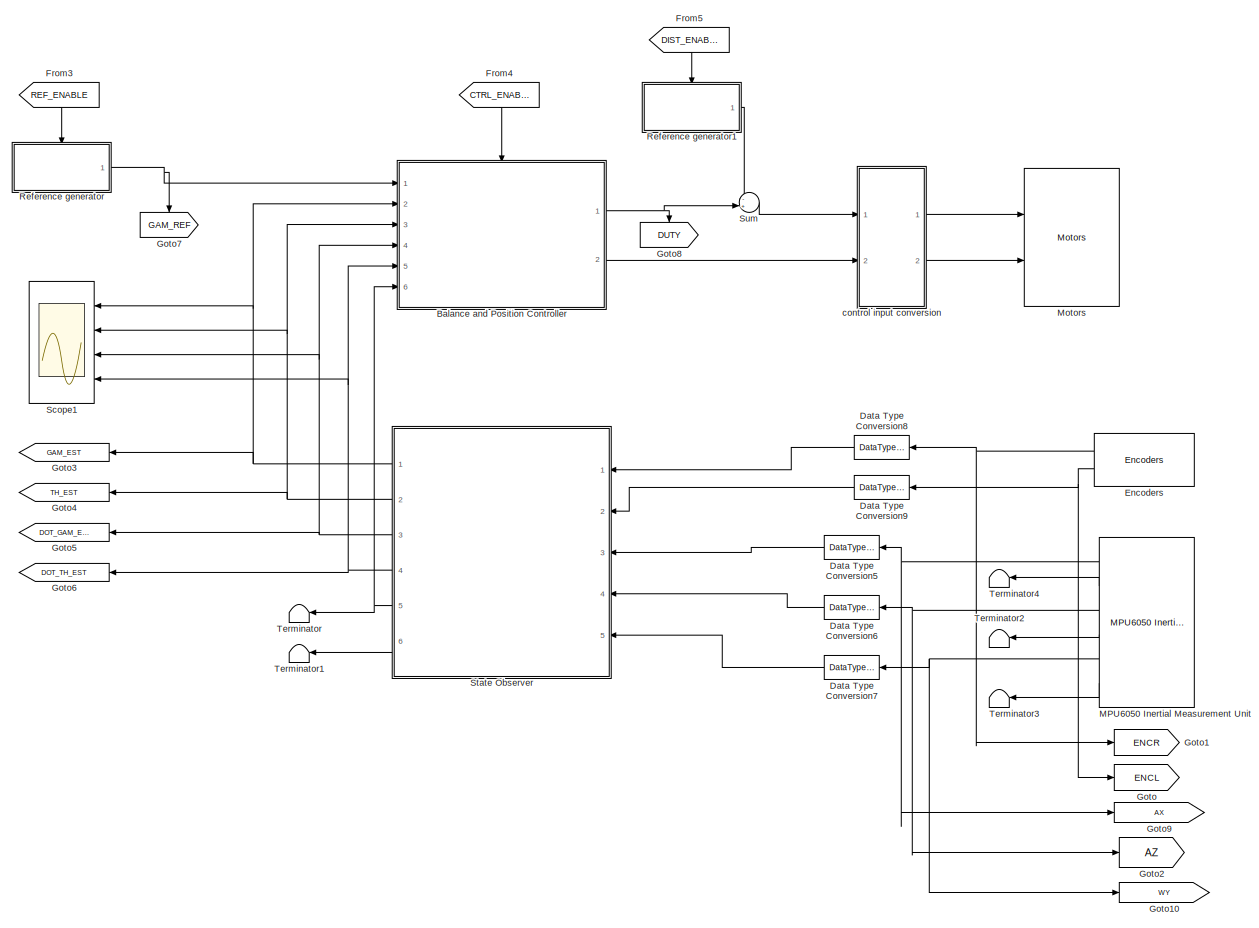
[diagram: root canvas - part 1/3, top center region]
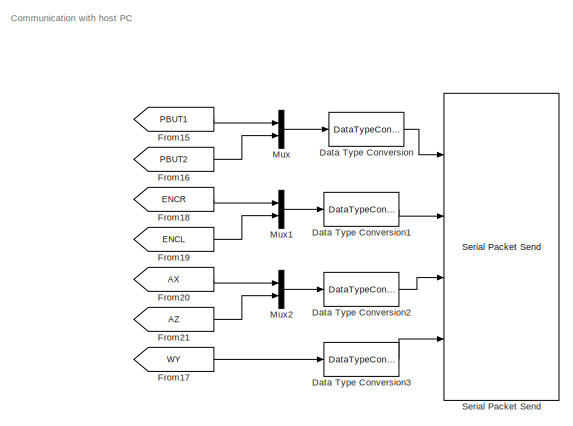
[diagram: root canvas - part 2/3, middle right region]
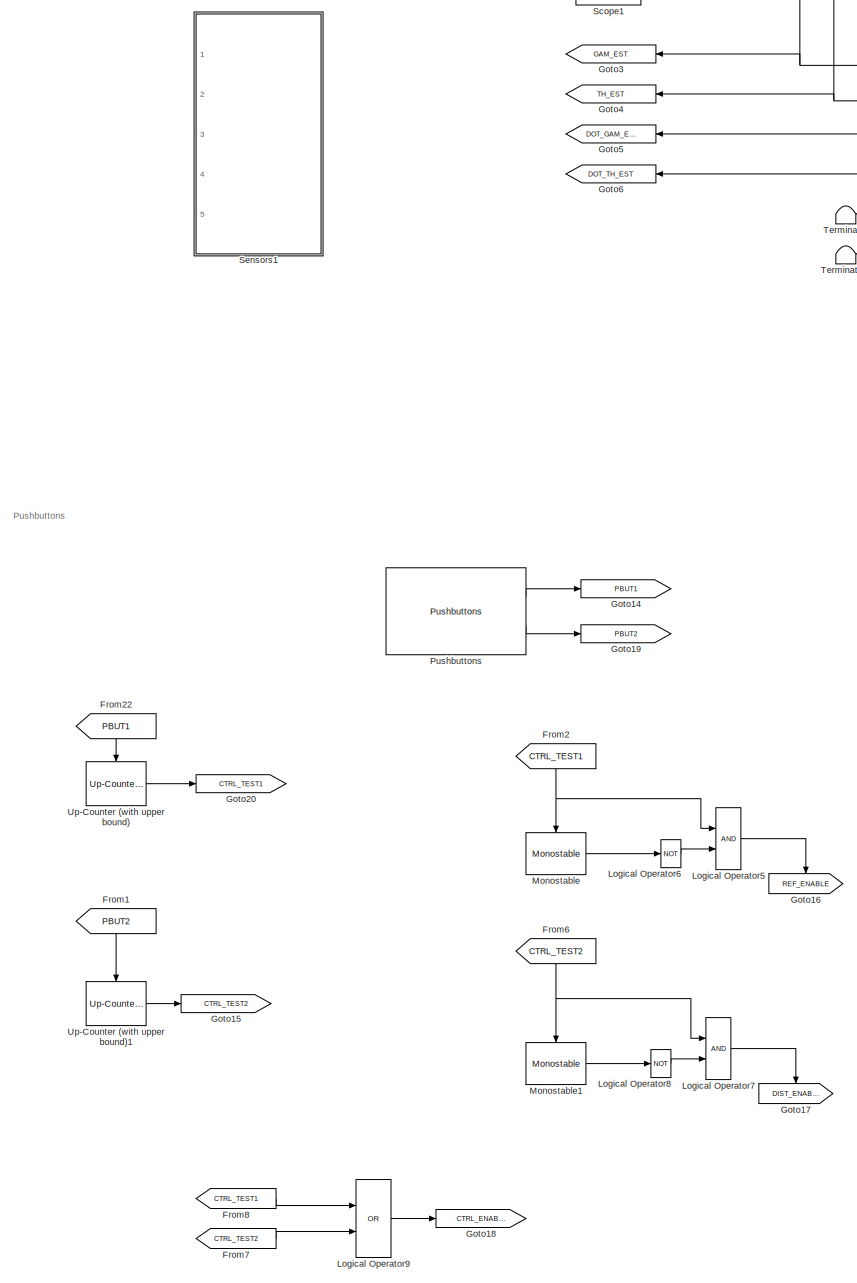
[diagram: root canvas - part 3/3, left side, full height]
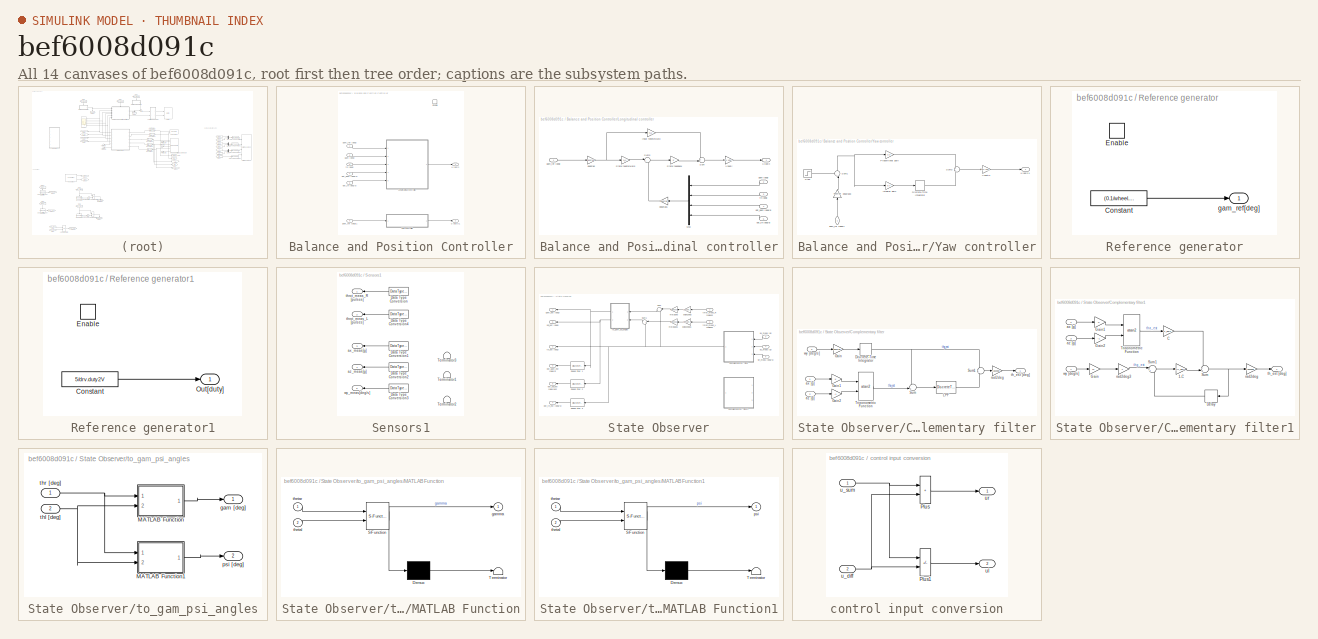
[diagram: thumbnail index - all 14 canvases of the model, root first then tree order]
MODEL slx_bef6008d091c
KIND model
CONFIG AbsTol = auto
CONFIG EnableMultiTasking = on
CONFIG FixedStep = auto
CONFIG MaxStep = auto
CONFIG MinStep = auto
CONFIG RelTol = 1e-3
CONFIG SampleTimeConstraint = Unconstrained
CONFIG SolverName = FixedStepDiscrete
CONFIG StartTime = 0.0
CONFIG StopTime = 10.0
BLOCK [SubSystem] Balance and Position Controller
  Ports = [6, 2, 1]
  RequestExecContextInheritance = off
BLOCK [EnablePort] Balance and Position Controller/Enable
  Ports = []
  StatesWhenEnabling = reset
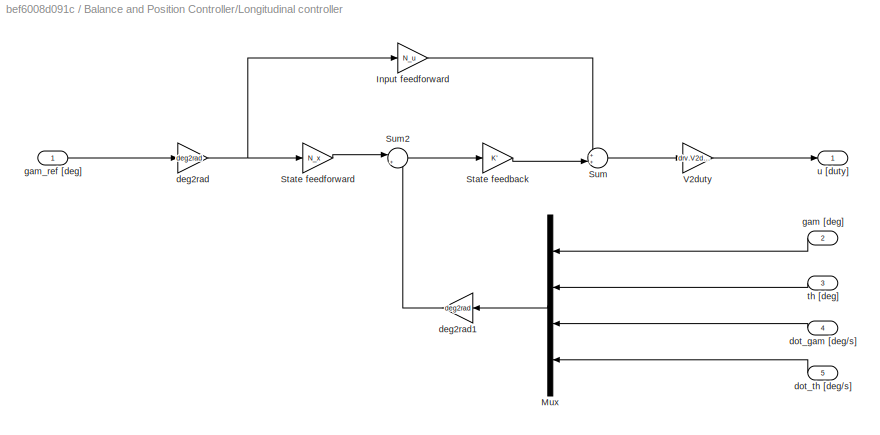
BLOCK [SubSystem] Balance and Position Controller/Longitudinal controller
  Ports = [5, 1]
  RequestExecContextInheritance = off
BLOCK [Gain] Balance and Position Controller/Longitudinal controller/Input feedforward
  Gain = N_u
BLOCK [Mux] Balance and Position Controller/Longitudinal controller/Mux
  DisplayOption = bar
  Ports = [4, 1]
BLOCK [Gain] Balance and Position Controller/Longitudinal controller/State feedback
  Gain = K'
  Multiplication = Matrix(u*K)
BLOCK [Gain] Balance and Position Controller/Longitudinal controller/State feedforward	
  Gain = N_x
  Multiplication = Matrix(u*K)
BLOCK [Sum] Balance and Position Controller/Longitudinal controller/Sum
  Inputs = ++|
  Ports = [2, 1]
BLOCK [Sum] Balance and Position Controller/Longitudinal controller/Sum2
  Inputs = |+-
  Ports = [2, 1]
BLOCK [Gain] Balance and Position Controller/Longitudinal controller/V2duty
  Gain = drv.V2duty
BLOCK [Gain] Balance and Position Controller/Longitudinal controller/deg2rad
  Gain = deg2rad
BLOCK [Gain] Balance and Position Controller/Longitudinal controller/deg2rad1
  Gain = deg2rad
BLOCK [Inport] Balance and Position Controller/Longitudinal controller/dot_gam [deg//s]
  Port = 4
BLOCK [Inport] Balance and Position Controller/Longitudinal controller/dot_th [deg//s]
  Port = 5
BLOCK [Inport] Balance and Position Controller/Longitudinal controller/gam [deg]
  Port = 2
BLOCK [Inport] Balance and Position Controller/Longitudinal controller/gam_ref [deg]
BLOCK [Inport] Balance and Position Controller/Longitudinal controller/th [deg]
  Port = 3
BLOCK [Outport] Balance and Position Controller/Longitudinal controller/u [duty]
BLOCK [SubSystem] Balance and Position Controller/Yaw controller
  Ports = [1, 1]
  RequestExecContextInheritance = off
BLOCK [DiscreteIntegrator] Balance and Position Controller/Yaw controller/Discrete-Time Integrator
  ICPrevOutput = DiscIntNeverNeededParam
  ICPrevScaledInput = DiscIntNeverNeededParam
  InitialConditionSetting = Auto
  Ports = [1, 1]
  SampleTime = -1
BLOCK [Gain] Balance and Position Controller/Yaw controller/Integral gain
  Gain = 0.7
BLOCK [Gain] Balance and Position Controller/Yaw controller/Proportional gain
  Gain = 3.3
BLOCK [Step] Balance and Position Controller/Yaw controller/Step
  After = 0
  SampleTime = 0
  Time = 0
BLOCK [Sum] Balance and Position Controller/Yaw controller/Sum1
  Inputs = +-|
  NameLocation = right
  Ports = [2, 1]
BLOCK [Sum] Balance and Position Controller/Yaw controller/Sum3
  Inputs = +|+
  Ports = [2, 1]
BLOCK [Gain] Balance and Position Controller/Yaw controller/V2duty1
  Gain = drv.V2duty
BLOCK [Gain] Balance and Position Controller/Yaw controller/deg2rad3
  Gain = deg2rad
  Multiplication = Matrix(u*K)
  NameLocation = right
BLOCK [Inport] Balance and Position Controller/Yaw controller/gam_ref [deg]1
  NameLocation = right
BLOCK [Outport] Balance and Position Controller/Yaw controller/u [duty]1
BLOCK [Inport] Balance and Position Controller/dot_gam [deg//s]
  Port = 4
BLOCK [Inport] Balance and Position Controller/dot_th [deg//s]
  Port = 5
BLOCK [Inport] Balance and Position Controller/gam [deg]
  Port = 2
BLOCK [Inport] Balance and Position Controller/gam_ref [deg]
BLOCK [Inport] Balance and Position Controller/gam_ref [deg]1
  Port = 6
BLOCK [Inport] Balance and Position Controller/th [deg]
  Port = 3
BLOCK [Outport] Balance and Position Controller/u [duty]
BLOCK [Outport] Balance and Position Controller/u [duty]1
  InitialOutput = [0]
  Port = 2
BLOCK [DataTypeConversion] Data Type Conversion
  OutDataTypeStr = uint8
  RndMeth = Floor
  SaturateOnIntegerOverflow = off
BLOCK [DataTypeConversion] Data Type Conversion1
  OutDataTypeStr = int32
  RndMeth = Floor
  SaturateOnIntegerOverflow = off
BLOCK [DataTypeConversion] Data Type Conversion2
  OutDataTypeStr = single
  RndMeth = Floor
  SaturateOnIntegerOverflow = off
BLOCK [DataTypeConversion] Data Type Conversion3
  OutDataTypeStr = single
  RndMeth = Floor
  SaturateOnIntegerOverflow = off
BLOCK [DataTypeConversion] Data Type Conversion5
  OutDataTypeStr = double
  RndMeth = Floor
  SaturateOnIntegerOverflow = off
BLOCK [DataTypeConversion] Data Type Conversion6
  OutDataTypeStr = double
  RndMeth = Floor
  SaturateOnIntegerOverflow = off
BLOCK [DataTypeConversion] Data Type Conversion7
  OutDataTypeStr = double
  RndMeth = Floor
  SaturateOnIntegerOverflow = off
BLOCK [DataTypeConversion] Data Type Conversion8
  OutDataTypeStr = double
  RndMeth = Floor
  SaturateOnIntegerOverflow = off
BLOCK [DataTypeConversion] Data Type Conversion9
  OutDataTypeStr = double
  RndMeth = Floor
  SaturateOnIntegerOverflow = off
BLOCK [Reference] Encoders  REF=BalRobTbx_baselib/Inputs/Encoders
  NameLocation = top
  Ports = [0, 2]
  SourceBlock = BalRobTbx_baselib/Inputs/Encoders
  SourceProductName = Balancing Robot Toolbox
  SourceType = Encoders
BLOCK [From] From1
  GotoTag = PBUT2
  NameLocation = right
BLOCK [From] From15
  GotoTag = PBUT1
BLOCK [From] From16
  GotoTag = PBUT2
BLOCK [From] From17
  GotoTag = WY
BLOCK [From] From18
  GotoTag = ENCR
BLOCK [From] From19
  GotoTag = ENCL
BLOCK [From] From2
  GotoTag = CTRL_TEST1
  NameLocation = right
BLOCK [From] From20
  GotoTag = AX
BLOCK [From] From21
  GotoTag = AZ
BLOCK [From] From22
  GotoTag = PBUT1
  NameLocation = right
BLOCK [From] From3
  GotoTag = REF_ENABLE
  NameLocation = right
BLOCK [From] From4
  GotoTag = CTRL_ENABLE
  NameLocation = right
BLOCK [From] From5
  GotoTag = DIST_ENABLE
  NameLocation = right
BLOCK [From] From6
  GotoTag = CTRL_TEST2
  NameLocation = right
BLOCK [From] From7
  GotoTag = CTRL_TEST2
  NameLocation = top
BLOCK [From] From8
  GotoTag = CTRL_TEST1
  NameLocation = top
BLOCK [Goto] Goto
  GotoTag = ENCL
BLOCK [Goto] Goto1
  GotoTag = ENCR
BLOCK [Goto] Goto10
  GotoTag = WY
BLOCK [Goto] Goto14
  GotoTag = PBUT1
BLOCK [Goto] Goto15
  GotoTag = CTRL_TEST2
BLOCK [Goto] Goto16
  GotoTag = REF_ENABLE
  NameLocation = left
BLOCK [Goto] Goto17
  GotoTag = DIST_ENABLE
  NameLocation = left
BLOCK [Goto] Goto18
  GotoTag = CTRL_ENABLE
BLOCK [Goto] Goto19
  GotoTag = PBUT2
BLOCK [Goto] Goto2
  GotoTag = AZ
BLOCK [Goto] Goto20
  GotoTag = CTRL_TEST1
BLOCK [Goto] Goto3
  GotoTag = GAM_EST
BLOCK [Goto] Goto4
  GotoTag = TH_EST
BLOCK [Goto] Goto5
  GotoTag = DOT_GAM_EST
BLOCK [Goto] Goto6
  GotoTag = DOT_TH_EST
BLOCK [Goto] Goto7
  GotoTag = GAM_REF
  NameLocation = left
BLOCK [Goto] Goto8
  GotoTag = DUTY
  NameLocation = left
BLOCK [Goto] Goto9
  GotoTag = AX
BLOCK [Logic] Logical Operator5
  AllPortsSameDT = off
  OutDataTypeStr = boolean
  Ports = [2, 1]
BLOCK [Logic] Logical Operator6
  AllPortsSameDT = off
  Inputs = 1
  Operator = NOT
  OutDataTypeStr = boolean
  Ports = [1, 1]
BLOCK [Logic] Logical Operator7
  AllPortsSameDT = off
  OutDataTypeStr = boolean
  Ports = [2, 1]
BLOCK [Logic] Logical Operator8
  AllPortsSameDT = off
  Inputs = 1
  Operator = NOT
  OutDataTypeStr = boolean
  Ports = [1, 1]
BLOCK [Logic] Logical Operator9
  AllPortsSameDT = off
  Operator = OR
  OutDataTypeStr = boolean
  Ports = [2, 1]
BLOCK [Reference] MPU6050 Inertial Measurement Unit  REF=BalRobTbx_baselib/Inputs/MPU6050
Inertial Measurement Unit
  NameLocation = top
  Ports = [0, 6]
  SourceBlock = BalRobTbx_baselib/Inputs/MPU6050\nInertial Measurement Unit
  SourceProductName = Balancing Robot Toolbox
  SourceType = MPU6050
BLOCK [Reference] Monostable  REF=BalRobTbx_baselib/Utilities/Monostable
  Ports = [0, 1, 1]
  SourceBlock = BalRobTbx_baselib/Utilities/Monostable
  SourceProductName = Balancing Robot Toolbox
BLOCK [Reference] Monostable1  REF=BalRobTbx_baselib/Utilities/Monostable
  Ports = [0, 1, 1]
  SourceBlock = BalRobTbx_baselib/Utilities/Monostable
  SourceProductName = Balancing Robot Toolbox
BLOCK [Reference] Motors  REF=BalRobTbx_baselib/Outputs/Motors
  Ports = [2]
  SourceBlock = BalRobTbx_baselib/Outputs/Motors
  SourceProductName = Balancing Robot Toolbox
  SourceType = Motors
BLOCK [Mux] Mux
  DisplayOption = bar
  Inputs = 2
  Ports = [2, 1]
BLOCK [Mux] Mux1
  DisplayOption = bar
  Inputs = 2
  Ports = [2, 1]
BLOCK [Mux] Mux2
  DisplayOption = bar
  Inputs = 2
  Ports = [2, 1]
BLOCK [Reference] Pushbuttons  REF=BalRobTbx_baselib/Inputs/Pushbuttons
  Ports = [0, 2]
  SourceBlock = BalRobTbx_baselib/Inputs/Pushbuttons
  SourceProductName = Balancing Robot Toolbox
  SourceType = Pushbuttons
BLOCK [SubSystem] Reference generator
  Ports = [0, 1, 1]
  RequestExecContextInheritance = off
BLOCK [Constant] Reference generator/Constant
  SampleTime = 0.01
  Value = (0.1/wheel.r)*rad2deg
BLOCK [EnablePort] Reference generator/Enable
  Ports = []
  StatesWhenEnabling = reset
BLOCK [Outport] Reference generator/gam_ref[deg]
BLOCK [SubSystem] Reference generator1
  Ports = [0, 1, 1]
  RequestExecContextInheritance = off
BLOCK [Constant] Reference generator1/Constant
  SampleTime = 0.01
  Value = 5/drv.duty2V
BLOCK [EnablePort] Reference generator1/Enable
  Ports = []
  StatesWhenEnabling = reset
BLOCK [Outport] Reference generator1/Out[duty]
  InitialOutput = [0]
BLOCK [Scope] Scope1
  Floating = off
  NumInputPorts = 4
  Ports = [4]
  ScopeSpecificationString = Simulink.scopes.TimeScopeBlockCfg('CurrentConfiguration', extmgr.ConfigurationSet(extmgr.Configuration('Core','General UI',true),extmgr.Configuration('Core','Source UI',true),extmgr.Configuration('Sources','WiredSimulink',true,'DataLogging',true,'DataLoggingSaveFormat','StructureWithTime'),extmgr.Configuration('Visuals','Time Domain',true,'SerializedDisplays',{struct('MinYLimReal','-1314.10845','M...<+3526ch>
BLOCK [SubSystem] Sensors1
  Commented = on
  Ports = [0, 5]
  RequestExecContextInheritance = off
BLOCK [DataTypeConversion] Sensors1/Data Type Conversion
  OutDataTypeStr = double
  RndMeth = Floor
  SaturateOnIntegerOverflow = off
BLOCK [DataTypeConversion] Sensors1/Data Type Conversion1
  OutDataTypeStr = double
  RndMeth = Floor
  SaturateOnIntegerOverflow = off
BLOCK [DataTypeConversion] Sensors1/Data Type Conversion2
  OutDataTypeStr = double
  RndMeth = Floor
  SaturateOnIntegerOverflow = off
BLOCK [DataTypeConversion] Sensors1/Data Type Conversion3
  OutDataTypeStr = double
  RndMeth = Floor
  SaturateOnIntegerOverflow = off
BLOCK [DataTypeConversion] Sensors1/Data Type Conversion4
  OutDataTypeStr = double
  RndMeth = Floor
  SaturateOnIntegerOverflow = off
BLOCK [Terminator] Sensors1/Terminator1
BLOCK [Terminator] Sensors1/Terminator2
BLOCK [Terminator] Sensors1/Terminator3
BLOCK [Outport] Sensors1/ax_meas[g]
  Port = 3
BLOCK [Outport] Sensors1/az_meas[g]
  Port = 4
BLOCK [Outport] Sensors1/throt_meas_L [pulses]
  Port = 2
BLOCK [Outport] Sensors1/throt_meas_R [pulses]
BLOCK [Outport] Sensors1/wy_meas[deg//s]
  Port = 5
BLOCK [Reference] Serial Packet Send  REF=BalRobTbx_baselib/Communication/Serial Packet Send
  Ports = [4]
  SourceBlock = BalRobTbx_baselib/Communication/Serial Packet Send
  SourceProductName = Balancing Robot Toolbox
  SourceType = Serial Packet Send
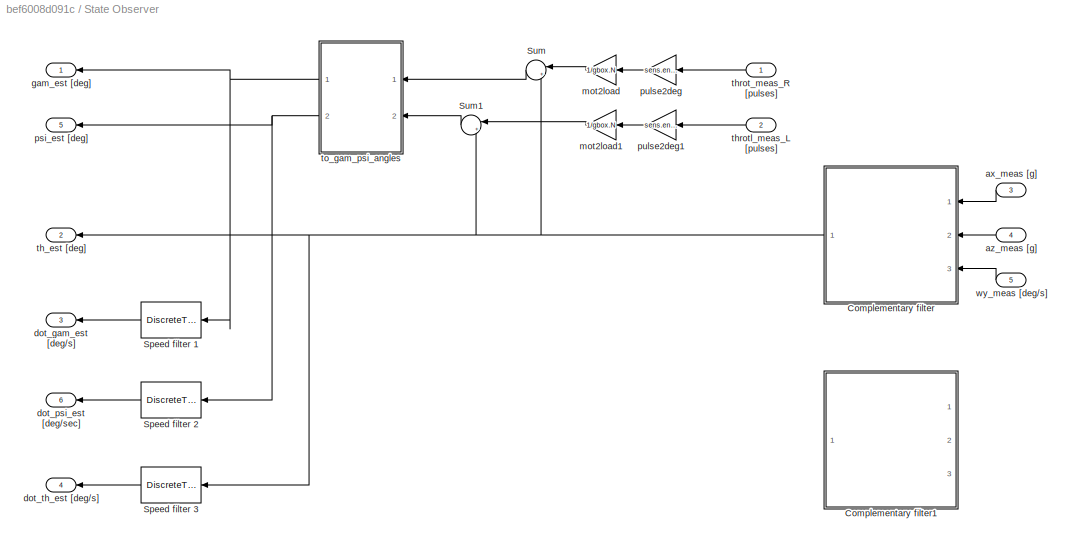
BLOCK [SubSystem] State Observer
  Ports = [5, 6]
  RequestExecContextInheritance = off
BLOCK [SubSystem] State Observer/Complementary filter
  Ports = [3, 1]
  RequestExecContextInheritance = off
BLOCK [DiscreteIntegrator] State Observer/Complementary filter/Discrete-Time Integrator
  ICPrevOutput = DiscIntNeverNeededParam
  ICPrevScaledInput = DiscIntNeverNeededParam
  InitialConditionSetting = Auto
  Ports = [1, 1]
  SampleTime = Ts
  gainval = 1
BLOCK [Gain] State Observer/Complementary filter/Gain
  Gain = deg2rad
BLOCK [Gain] State Observer/Complementary filter/Gain1
BLOCK [Gain] State Observer/Complementary filter/Gain2
  Gain = -1
BLOCK [DiscreteTransferFcn] State Observer/Complementary filter/LPF
  Denominator = [denLPFz]
  InputPortMap = u0
  Numerator = [numLPFz]
  Ports = [1, 1]
  SampleTime = Ts
BLOCK [Sum] State Observer/Complementary filter/Sum
  Inputs = -+|
  Ports = [2, 1]
BLOCK [Sum] State Observer/Complementary filter/Sum1
  Ports = [2, 1]
BLOCK [Trigonometry] State Observer/Complementary filter/Trigonometric Function
  Operator = atan2
  Ports = [2, 1]
BLOCK [Inport] State Observer/Complementary filter/ax [g] 
BLOCK [Inport] State Observer/Complementary filter/az [g] 
  Port = 2
BLOCK [Gain] State Observer/Complementary filter/rad2deg
  Gain = rad2deg
BLOCK [Outport] State Observer/Complementary filter/th_est [deg] 
BLOCK [Inport] State Observer/Complementary filter/wy [deg//s]
  Port = 3
BLOCK [SubSystem] State Observer/Complementary filter1
  Commented = on
  Ports = [3, 1]
  RequestExecContextInheritance = off
BLOCK [Gain] State Observer/Complementary filter1/1-C
  Gain = 1-C_gain
BLOCK [Gain] State Observer/Complementary filter1/C
  Gain = C_gain
BLOCK [Delay] State Observer/Complementary filter1/Delay
  DelayLength = 1
  InputPortMap = u0
  NameLocation = top
  Ports = [1, 1]
BLOCK [Gain] State Observer/Complementary filter1/Gain
  Gain = 11
BLOCK [Gain] State Observer/Complementary filter1/Gain1
BLOCK [Gain] State Observer/Complementary filter1/Gain2
  Gain = -1
BLOCK [Sum] State Observer/Complementary filter1/Sum
  Inputs = ++|
  Ports = [2, 1]
BLOCK [Sum] State Observer/Complementary filter1/Sum1
  Inputs = |++
  Ports = [2, 1]
BLOCK [Trigonometry] State Observer/Complementary filter1/Trigonometric Function
  Operator = atan2
  Ports = [2, 1]
BLOCK [Inport] State Observer/Complementary filter1/ax [g] 
  Port = 2
BLOCK [Inport] State Observer/Complementary filter1/az [g] 
  Port = 3
BLOCK [Gain] State Observer/Complementary filter1/rad2deg
  Gain = rad2deg
BLOCK [Gain] State Observer/Complementary filter1/rad2deg3
  Gain = T
BLOCK [Outport] State Observer/Complementary filter1/th_est [deg] 
BLOCK [Inport] State Observer/Complementary filter1/wy [deg//s]
BLOCK [DiscreteTransferFcn] State Observer/Speed filter 1
  Denominator = [denHw]
  InputPortMap = u0
  Numerator = [numHw]
  Ports = [1, 1]
  SampleTime = Ts
BLOCK [DiscreteTransferFcn] State Observer/Speed filter 2
  Denominator = [denHw]
  InputPortMap = u0
  Numerator = [numHw]
  Ports = [1, 1]
  SampleTime = Ts
BLOCK [DiscreteTransferFcn] State Observer/Speed filter 3
  Denominator = [denHw]
  InputPortMap = u0
  Numerator = [numHw]
  Ports = [1, 1]
  SampleTime = Ts
BLOCK [Sum] State Observer/Sum
  Inputs = |++
  NameLocation = top
  Ports = [2, 1]
BLOCK [Sum] State Observer/Sum1
  Inputs = |++
  NameLocation = top
  Ports = [2, 1]
BLOCK [Inport] State Observer/ax_meas [g] 
  Port = 3
BLOCK [Inport] State Observer/az_meas [g] 
  Port = 4
BLOCK [Outport] State Observer/dot_gam_est [deg//s]
  Port = 3
BLOCK [Outport] State Observer/dot_psi_est [deg//sec]
  Port = 6
BLOCK [Outport] State Observer/dot_th_est [deg//s]
  Port = 4
BLOCK [Outport] State Observer/gam_est [deg]
BLOCK [Gain] State Observer/mot2load
  Gain = 1/gbox.N
BLOCK [Gain] State Observer/mot2load1
  Gain = 1/gbox.N
BLOCK [Outport] State Observer/psi_est [deg]
  Port = 5
BLOCK [Gain] State Observer/pulse2deg
  Gain = sens.enc.pulse2deg
BLOCK [Gain] State Observer/pulse2deg1
  Gain = sens.enc.pulse2deg
BLOCK [Outport] State Observer/th_est [deg]
  Port = 2
BLOCK [Inport] State Observer/throt_meas_R [pulses] 
BLOCK [Inport] State Observer/throtl_meas_L [pulses]
  Port = 2
BLOCK [SubSystem] State Observer/to_gam_psi_angles
  Ports = [2, 2]
  RequestExecContextInheritance = off
BLOCK [SubSystem] State Observer/to_gam_psi_angles/MATLAB Function
  ErrorFcn = Stateflow.Translate.translate
  PermitHierarchicalResolution = ExplicitOnly
  Ports = [2, 1]
  RequestExecContextInheritance = off
  SFBlockType = MATLAB Function
  TreatAsAtomicUnit = on
BLOCK [Demux] State Observer/to_gam_psi_angles/MATLAB Function/ Demux 
  Outputs = 1
  Ports = [1, 1]
BLOCK [S-Function] State Observer/to_gam_psi_angles/MATLAB Function/ SFunction 
  EnableBusSupport = on
  FunctionName = sf_sfun
  PortCounts = [2 2]
  Ports = [2, 2]
  SFcnIsStateOwnerBlock = off
  SFunctionDeploymentMode = off
  Tag = Stateflow S-Function 2
BLOCK [Terminator] State Observer/to_gam_psi_angles/MATLAB Function/ Terminator 
BLOCK [Outport] State Observer/to_gam_psi_angles/MATLAB Function/gamma
BLOCK [Inport] State Observer/to_gam_psi_angles/MATLAB Function/thetal
  Port = 2
BLOCK [Inport] State Observer/to_gam_psi_angles/MATLAB Function/thetar
BLOCK [SubSystem] State Observer/to_gam_psi_angles/MATLAB Function1
  ErrorFcn = Stateflow.Translate.translate
  PermitHierarchicalResolution = ExplicitOnly
  Ports = [2, 1]
  RequestExecContextInheritance = off
  SFBlockType = MATLAB Function
  TreatAsAtomicUnit = on
BLOCK [Demux] State Observer/to_gam_psi_angles/MATLAB Function1/ Demux 
  Outputs = 1
  Ports = [1, 1]
BLOCK [S-Function] State Observer/to_gam_psi_angles/MATLAB Function1/ SFunction 
  EnableBusSupport = on
  FunctionName = sf_sfun
  PortCounts = [2 2]
  Ports = [2, 2]
  SFcnIsStateOwnerBlock = off
  SFunctionDeploymentMode = off
  Tag = Stateflow S-Function 1
BLOCK [Terminator] State Observer/to_gam_psi_angles/MATLAB Function1/ Terminator 
BLOCK [Outport] State Observer/to_gam_psi_angles/MATLAB Function1/psi
BLOCK [Inport] State Observer/to_gam_psi_angles/MATLAB Function1/thetal
  Port = 2
BLOCK [Inport] State Observer/to_gam_psi_angles/MATLAB Function1/thetar
BLOCK [Outport] State Observer/to_gam_psi_angles/gam [deg]
BLOCK [Outport] State Observer/to_gam_psi_angles/psi [deg]
  Port = 2
BLOCK [Inport] State Observer/to_gam_psi_angles/thl [deg]
  Port = 2
BLOCK [Inport] State Observer/to_gam_psi_angles/thr [deg]
BLOCK [Inport] State Observer/wy_meas [deg//s]
  Port = 5
BLOCK [Sum] Sum
  Inputs = -+|
  Ports = [2, 1]
BLOCK [Terminator] Terminator
BLOCK [Terminator] Terminator1
BLOCK [Terminator] Terminator2
BLOCK [Terminator] Terminator3
BLOCK [Terminator] Terminator4
BLOCK [Reference] Up-Counter (with upper bound)  REF=BalRobTbx_baselib/Utilities/Up-Counter
(with upper bound)
  Ports = [0, 1, 0, 1]
  SourceBlock = BalRobTbx_baselib/Utilities/Up-Counter\n(with upper bound)
  SourceProductName = Balancing Robot Toolbox
BLOCK [Reference] Up-Counter (with upper bound)1  REF=BalRobTbx_baselib/Utilities/Up-Counter
(with upper bound)
  Ports = [0, 1, 0, 1]
  SourceBlock = BalRobTbx_baselib/Utilities/Up-Counter\n(with upper bound)
  SourceProductName = Balancing Robot Toolbox
BLOCK [SubSystem] control input conversion
  Ports = [2, 2]
  RequestExecContextInheritance = off
BLOCK [Sum] control input conversion/Plus
  IconShape = rectangular
  Ports = [2, 1]
BLOCK [Sum] control input conversion/Plus1
  IconShape = rectangular
  Inputs = +-
  Ports = [2, 1]
BLOCK [Inport] control input conversion/u_diff
  Port = 2
BLOCK [Inport] control input conversion/u_sum
BLOCK [Outport] control input conversion/ul
  Port = 2
BLOCK [Outport] control input conversion/ur
ANNOTATION (root): Communication with host PC
ANNOTATION (root): Pushbuttons
LINE Balance and Position Controller/Longitudinal controller/Input feedforward:1 -> Balance and Position Controller/Longitudinal controller/Sum:1
LINE Balance and Position Controller/Longitudinal controller/Mux:1 -> Balance and Position Controller/Longitudinal controller/deg2rad1:1
LINE Balance and Position Controller/Longitudinal controller/State feedback:1 -> Balance and Position Controller/Longitudinal controller/Sum:2
LINE Balance and Position Controller/Longitudinal controller/State feedforward	:1 -> Balance and Position Controller/Longitudinal controller/Sum2:1
LINE Balance and Position Controller/Longitudinal controller/Sum2:1 -> Balance and Position Controller/Longitudinal controller/State feedback:1
LINE Balance and Position Controller/Longitudinal controller/Sum:1 -> Balance and Position Controller/Longitudinal controller/V2duty:1
LINE Balance and Position Controller/Longitudinal controller/V2duty:1 -> Balance and Position Controller/Longitudinal controller/u [duty]:1
LINE Balance and Position Controller/Longitudinal controller/deg2rad1:1 -> Balance and Position Controller/Longitudinal controller/Sum2:2
NET Balance and Position Controller/Longitudinal controller/deg2rad:1 -> Balance and Position Controller/Longitudinal controller/Input feedforward:1, Balance and Position Controller/Longitudinal controller/State feedforward	:1
LINE Balance and Position Controller/Longitudinal controller/dot_gam [deg//s]:1 -> Balance and Position Controller/Longitudinal controller/Mux:3
LINE Balance and Position Controller/Longitudinal controller/dot_th [deg//s]:1 -> Balance and Position Controller/Longitudinal controller/Mux:4
LINE Balance and Position Controller/Longitudinal controller/gam [deg]:1 -> Balance and Position Controller/Longitudinal controller/Mux:1
LINE Balance and Position Controller/Longitudinal controller/gam_ref [deg]:1 -> Balance and Position Controller/Longitudinal controller/deg2rad:1
LINE Balance and Position Controller/Longitudinal controller/th [deg]:1 -> Balance and Position Controller/Longitudinal controller/Mux:2
LINE Balance and Position Controller/Longitudinal controller:1 -> Balance and Position Controller/u [duty]:1
LINE Balance and Position Controller/Yaw controller/Discrete-Time Integrator:1 -> Balance and Position Controller/Yaw controller/Sum3:2
LINE Balance and Position Controller/Yaw controller/Integral gain:1 -> Balance and Position Controller/Yaw controller/Discrete-Time Integrator:1
LINE Balance and Position Controller/Yaw controller/Proportional gain:1 -> Balance and Position Controller/Yaw controller/Sum3:1
LINE Balance and Position Controller/Yaw controller/Step:1 -> Balance and Position Controller/Yaw controller/Sum1:1
NET Balance and Position Controller/Yaw controller/Sum1:1 -> Balance and Position Controller/Yaw controller/Integral gain:1, Balance and Position Controller/Yaw controller/Proportional gain:1
LINE Balance and Position Controller/Yaw controller/Sum3:1 -> Balance and Position Controller/Yaw controller/V2duty1:1
LINE Balance and Position Controller/Yaw controller/V2duty1:1 -> Balance and Position Controller/Yaw controller/u [duty]1:1
LINE Balance and Position Controller/Yaw controller/deg2rad3:1 -> Balance and Position Controller/Yaw controller/Sum1:2
LINE Balance and Position Controller/Yaw controller/gam_ref [deg]1:1 -> Balance and Position Controller/Yaw controller/deg2rad3:1
LINE Balance and Position Controller/Yaw controller:1 -> Balance and Position Controller/u [duty]1:1
LINE Balance and Position Controller/dot_gam [deg//s]:1 -> Balance and Position Controller/Longitudinal controller:4
LINE Balance and Position Controller/dot_th [deg//s]:1 -> Balance and Position Controller/Longitudinal controller:5
LINE Balance and Position Controller/gam [deg]:1 -> Balance and Position Controller/Longitudinal controller:2
LINE Balance and Position Controller/gam_ref [deg]1:1 -> Balance and Position Controller/Yaw controller:1
LINE Balance and Position Controller/gam_ref [deg]:1 -> Balance and Position Controller/Longitudinal controller:1
LINE Balance and Position Controller/th [deg]:1 -> Balance and Position Controller/Longitudinal controller:3
NET Balance and Position Controller:1 -> Goto8:1, Sum:2
LINE Balance and Position Controller:2 -> control input conversion:2
LINE Data Type Conversion1:1 -> Serial Packet Send:2
LINE Data Type Conversion2:1 -> Serial Packet Send:3
LINE Data Type Conversion3:1 -> Serial Packet Send:4
LINE Data Type Conversion5:1 -> State Observer:3
LINE Data Type Conversion6:1 -> State Observer:4
LINE Data Type Conversion7:1 -> State Observer:5
LINE Data Type Conversion8:1 -> State Observer:1
LINE Data Type Conversion9:1 -> State Observer:2
LINE Data Type Conversion:1 -> Serial Packet Send:1
NET Encoders:1 -> Data Type Conversion8:1, Goto1:1
NET Encoders:2 -> Data Type Conversion9:1, Goto:1
LINE From15:1 -> Mux:1
LINE From16:1 -> Mux:2
LINE From17:1 -> Data Type Conversion3:1
LINE From18:1 -> Mux1:1
LINE From19:1 -> Mux1:2
LINE From1:1 -> Up-Counter (with upper bound)1:trigger
LINE From20:1 -> Mux2:1
LINE From21:1 -> Mux2:2
LINE From22:1 -> Up-Counter (with upper bound):trigger
NET From2:1 -> Logical Operator5:1, Monostable:enable
LINE From3:1 -> Reference generator:enable
LINE From4:1 -> Balance and Position Controller:enable
LINE From5:1 -> Reference generator1:enable
NET From6:1 -> Logical Operator7:1, Monostable1:enable
LINE From7:1 -> Logical Operator9:2
LINE From8:1 -> Logical Operator9:1
LINE Logical Operator5:1 -> Goto16:1
LINE Logical Operator6:1 -> Logical Operator5:2
LINE Logical Operator7:1 -> Goto17:1
LINE Logical Operator8:1 -> Logical Operator7:2
LINE Logical Operator9:1 -> Goto18:1
NET MPU6050 Inertial Measurement Unit:1 -> Data Type Conversion5:1, Goto9:1
LINE MPU6050 Inertial Measurement Unit:2 -> Terminator4:1
NET MPU6050 Inertial Measurement Unit:3 -> Data Type Conversion6:1, Goto2:1
LINE MPU6050 Inertial Measurement Unit:4 -> Terminator2:1
NET MPU6050 Inertial Measurement Unit:5 -> Data Type Conversion7:1, Goto10:1
LINE MPU6050 Inertial Measurement Unit:6 -> Terminator3:1
LINE Monostable1:1 -> Logical Operator8:1
LINE Monostable:1 -> Logical Operator6:1
LINE Mux1:1 -> Data Type Conversion1:1
LINE Mux2:1 -> Data Type Conversion2:1
LINE Mux:1 -> Data Type Conversion:1
LINE Pushbuttons:1 -> Goto14:1
LINE Pushbuttons:2 -> Goto19:1
LINE Reference generator/Constant:1 -> Reference generator/gam_ref[deg]:1
LINE Reference generator1/Constant:1 -> Reference generator1/Out[duty]:1
LINE Reference generator1:1 -> Sum:1
NET Reference generator:1 -> Balance and Position Controller:1, Goto7:1
LINE Sensors1/Data Type Conversion1:1 -> Sensors1/ax_meas[g]:1
LINE Sensors1/Data Type Conversion2:1 -> Sensors1/az_meas[g]:1
LINE Sensors1/Data Type Conversion3:1 -> Sensors1/wy_meas[deg//s]:1
LINE Sensors1/Data Type Conversion4:1 -> Sensors1/throt_meas_L [pulses]:1
LINE Sensors1/Data Type Conversion:1 -> Sensors1/throt_meas_R [pulses]:1
NET State Observer/Complementary filter/Discrete-Time Integrator:1 -> State Observer/Complementary filter/Sum1:1, State Observer/Complementary filter/Sum:1
LINE State Observer/Complementary filter/Gain1:1 -> State Observer/Complementary filter/Trigonometric Function:1
LINE State Observer/Complementary filter/Gain2:1 -> State Observer/Complementary filter/Trigonometric Function:2
LINE State Observer/Complementary filter/Gain:1 -> State Observer/Complementary filter/Discrete-Time Integrator:1
LINE State Observer/Complementary filter/LPF:1 -> State Observer/Complementary filter/Sum1:2
LINE State Observer/Complementary filter/Sum1:1 -> State Observer/Complementary filter/rad2deg:1
LINE State Observer/Complementary filter/Sum:1 -> State Observer/Complementary filter/LPF:1
LINE State Observer/Complementary filter/Trigonometric Function:1 -> State Observer/Complementary filter/Sum:2
LINE State Observer/Complementary filter/ax [g] :1 -> State Observer/Complementary filter/Gain1:1
LINE State Observer/Complementary filter/az [g] :1 -> State Observer/Complementary filter/Gain2:1
LINE State Observer/Complementary filter/rad2deg:1 -> State Observer/Complementary filter/th_est [deg] :1
LINE State Observer/Complementary filter/wy [deg//s]:1 -> State Observer/Complementary filter/Gain:1
LINE State Observer/Complementary filter1/1-C:1 -> State Observer/Complementary filter1/Sum:2
LINE State Observer/Complementary filter1/C:1 -> State Observer/Complementary filter1/Sum:1
LINE State Observer/Complementary filter1/Delay:1 -> State Observer/Complementary filter1/Sum1:2
LINE State Observer/Complementary filter1/Gain1:1 -> State Observer/Complementary filter1/Trigonometric Function:1
LINE State Observer/Complementary filter1/Gain2:1 -> State Observer/Complementary filter1/Trigonometric Function:2
LINE State Observer/Complementary filter1/Gain:1 -> State Observer/Complementary filter1/rad2deg3:1
LINE State Observer/Complementary filter1/Sum1:1 -> State Observer/Complementary filter1/1-C:1
NET State Observer/Complementary filter1/Sum:1 -> State Observer/Complementary filter1/Delay:1, State Observer/Complementary filter1/rad2deg:1
LINE State Observer/Complementary filter1/Trigonometric Function:1 -> State Observer/Complementary filter1/C:1
LINE State Observer/Complementary filter1/ax [g] :1 -> State Observer/Complementary filter1/Gain1:1
LINE State Observer/Complementary filter1/az [g] :1 -> State Observer/Complementary filter1/Gain2:1
LINE State Observer/Complementary filter1/rad2deg3:1 -> State Observer/Complementary filter1/Sum1:1
LINE State Observer/Complementary filter1/rad2deg:1 -> State Observer/Complementary filter1/th_est [deg] :1
LINE State Observer/Complementary filter1/wy [deg//s]:1 -> State Observer/Complementary filter1/Gain:1
NET State Observer/Complementary filter:1 -> State Observer/Speed filter 3:1, State Observer/Sum1:2, State Observer/Sum:2, State Observer/th_est [deg]:1
LINE State Observer/Speed filter 1:1 -> State Observer/dot_gam_est [deg//s]:1
LINE State Observer/Speed filter 2:1 -> State Observer/dot_psi_est [deg//sec]:1
LINE State Observer/Speed filter 3:1 -> State Observer/dot_th_est [deg//s]:1
LINE State Observer/Sum1:1 -> State Observer/to_gam_psi_angles:2
LINE State Observer/Sum:1 -> State Observer/to_gam_psi_angles:1
LINE State Observer/ax_meas [g] :1 -> State Observer/Complementary filter:1
LINE State Observer/az_meas [g] :1 -> State Observer/Complementary filter:2
LINE State Observer/mot2load1:1 -> State Observer/Sum1:1
LINE State Observer/mot2load:1 -> State Observer/Sum:1
LINE State Observer/pulse2deg1:1 -> State Observer/mot2load1:1
LINE State Observer/pulse2deg:1 -> State Observer/mot2load:1
LINE State Observer/throt_meas_R [pulses] :1 -> State Observer/pulse2deg:1
LINE State Observer/throtl_meas_L [pulses]:1 -> State Observer/pulse2deg1:1
LINE State Observer/to_gam_psi_angles/MATLAB Function1:1 -> State Observer/to_gam_psi_angles/psi [deg]:1
LINE State Observer/to_gam_psi_angles/MATLAB Function:1 -> State Observer/to_gam_psi_angles/gam [deg]:1
NET State Observer/to_gam_psi_angles/thl [deg]:1 -> State Observer/to_gam_psi_angles/MATLAB Function1:2, State Observer/to_gam_psi_angles/MATLAB Function:2
NET State Observer/to_gam_psi_angles/thr [deg]:1 -> State Observer/to_gam_psi_angles/MATLAB Function1:1, State Observer/to_gam_psi_angles/MATLAB Function:1
NET State Observer/to_gam_psi_angles:1 -> State Observer/Speed filter 1:1, State Observer/gam_est [deg]:1
NET State Observer/to_gam_psi_angles:2 -> State Observer/Speed filter 2:1, State Observer/psi_est [deg]:1
LINE State Observer/wy_meas [deg//s]:1 -> State Observer/Complementary filter:3
NET State Observer:1 -> Balance and Position Controller:2, Goto3:1, Scope1:1
NET State Observer:2 -> Balance and Position Controller:3, Goto4:1, Scope1:2
NET State Observer:3 -> Balance and Position Controller:4, Goto5:1, Scope1:3
NET State Observer:4 -> Balance and Position Controller:5, Goto6:1, Scope1:4
NET State Observer:5 -> Balance and Position Controller:6, Terminator:1
LINE State Observer:6 -> Terminator1:1
LINE Sum:1 -> control input conversion:1
LINE Up-Counter (with upper bound)1:1 -> Goto15:1
LINE Up-Counter (with upper bound):1 -> Goto20:1
LINE control input conversion/Plus1:1 -> control input conversion/ul:1
LINE control input conversion/Plus:1 -> control input conversion/ur:1
NET control input conversion/u_diff:1 -> control input conversion/Plus1:2, control input conversion/Plus:2
NET control input conversion/u_sum:1 -> control input conversion/Plus1:1, control input conversion/Plus:1
LINE control input conversion:1 -> Motors:1
LINE control input conversion:2 -> Motors:2
note: NET lines group one-source signal fan-out (src -> all destinations, sorted); 1:1 wires keep LINE
CHART State Observer/to_gam_psi_angles/MATLAB Function states=1 transitions=1
  STATE_LABEL 'eML_blk_kernel()'
  STATE_LABEL 'SCRIPT:\nfunction gamma = fcn(thetar, thetal)\ngamma = (thetar+thetal)/2;\n'
CHART State Observer/to_gam_psi_angles/MATLAB Function1 states=1 transitions=1
  STATE_LABEL 'eML_blk_kernel()'
  STATE_LABEL 'SCRIPT:\nfunction psi = fcn(thetar, thetal)\ndiff = thetar - thetal;\npsi = 34e-3*diff/(100e-3*2);\n'
CHART  states=0 transitions=0
CHART  states=0 transitions=0
